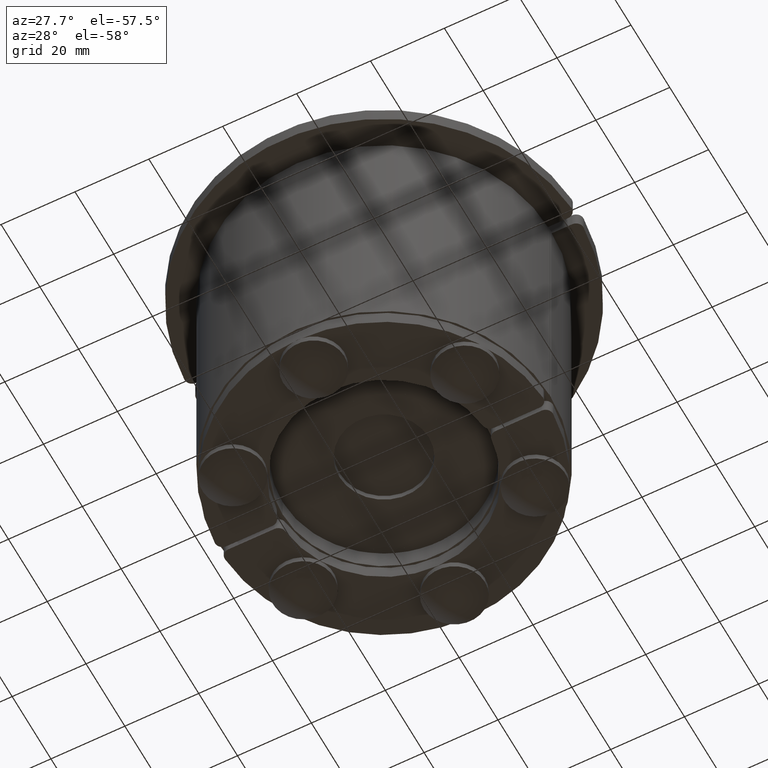
[diagram: clean part render]
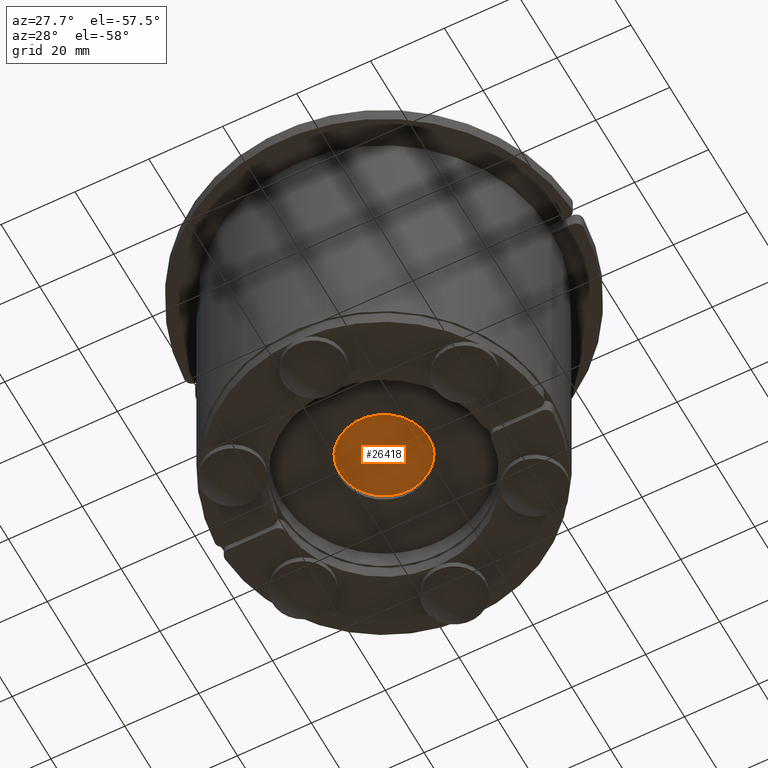
[diagram: same view with one face highlighted and labeled with its STEP entity id]
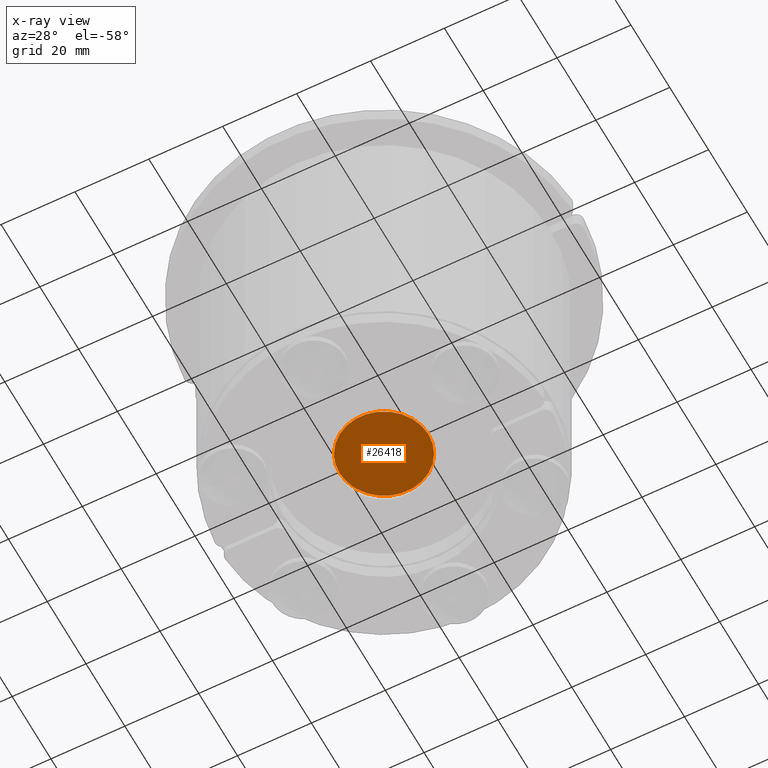
[diagram: x-ray of the same camera — body ghosted, the highlighted face saturated]
A machine part, auxiliary view. The second image highlights one B-rep face of the part: STEP entity #26418.
The next image is the same camera in x-ray: the body ghosted, the highlighted face saturated — about 0% of this face is hidden behind the body in this view.
In plain terms, the highlighted planar face has unit normal (-0, 0, -1).
Its self-contained STEP definition (entity closure, byte-faithful):
#26387=CARTESIAN_POINT('',(-12.000000000000002,60.0,1.469576E-015));
#26388=VERTEX_POINT('',#26387);
#26389=CARTESIAN_POINT('',(0.0,60.0,0.0));
#26390=DIRECTION('',(0.0,1.0,0.0));
#26391=DIRECTION('',(1.0,0.0,0.0));
#26392=AXIS2_PLACEMENT_3D('',#26389,#26390,#26391);
#26393=CIRCLE('',#26392,12.000000000000002);
#26394=EDGE_CURVE('',#26388,#26388,#26393,.T.);
#26410=CARTESIAN_POINT('',(7.392552E-016,60.0,-3.083953E-016));
#26411=DIRECTION('',(0.0,1.0,0.0));
#26412=DIRECTION('',(0.0,0.0,1.0));
#26413=AXIS2_PLACEMENT_3D('',#26410,#26411,#26412);
#26414=PLANE('',#26413);
#26415=ORIENTED_EDGE('',*,*,#26394,.T.);
#26416=EDGE_LOOP('',(#26415));
#26417=FACE_OUTER_BOUND('',#26416,.T.);
#26418=ADVANCED_FACE('',(#26417),#26414,.T.);